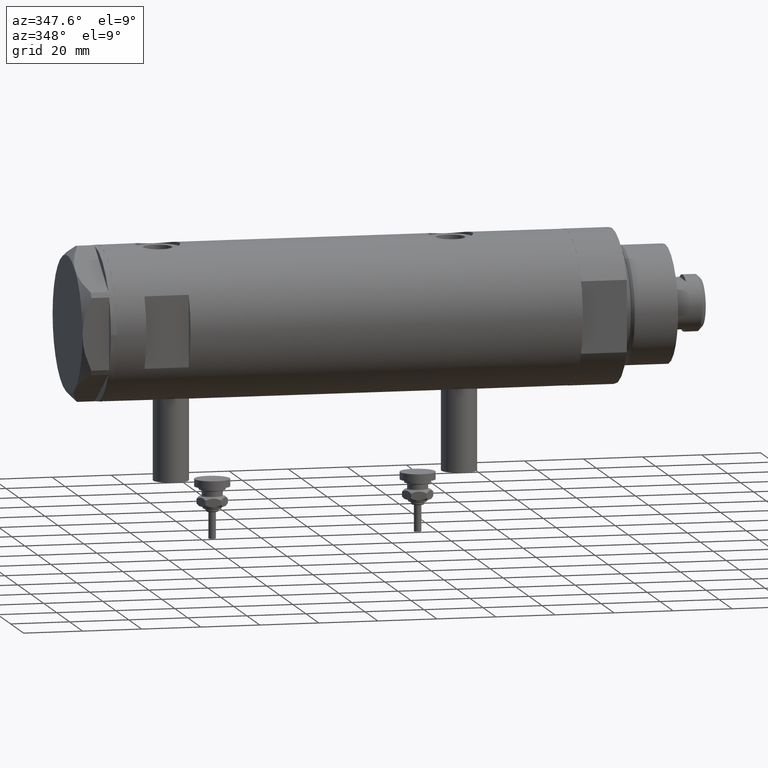
[diagram: clean part render]
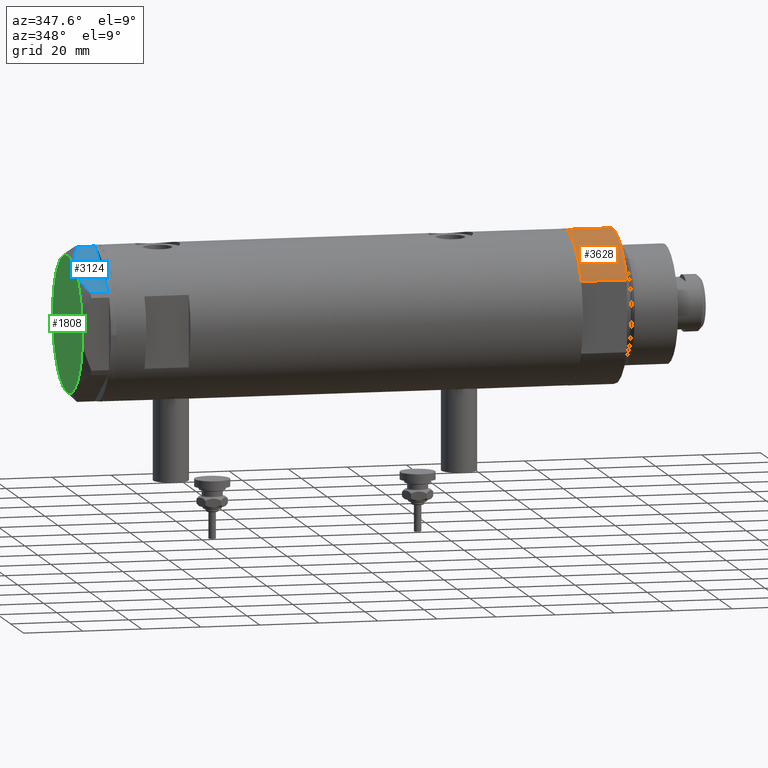
[diagram: same view with three faces highlighted in distinct colors, each labeled with its STEP entity id]
A machine part, auxiliary view with three faces highlighted in distinct colors.
Their STEP definitions:

[orange] entity #3628 — the highlighted cylindrical surface (partial cylindrical patch) has radius 26 mm, axis along (-1, -0, 0).
#18 = CIRCLE ( 'NONE', #2162, 26.00000000000000355 ) ;
#30 = VERTEX_POINT ( 'NONE', #1440 ) ;
#524 = CARTESIAN_POINT ( 'NONE',  ( -12.12435565298215501, -22.99999999999999645, 0.000000000000000000 ) ) ;
#680 = DIRECTION ( 'NONE',  ( 1.000000000000000000, 0.000000000000000000, 0.000000000000000000 ) ) ;
#707 = CARTESIAN_POINT ( 'NONE',  ( -26.00000000000000355, 0.000000000000000000, 15.50000000000000000 ) ) ;
#923 = EDGE_CURVE ( 'NONE', #1279, #1913, #2763, .T. ) ;
#1101 = LINE ( 'NONE', #4861, #1593 ) ;
#1179 = DIRECTION ( 'NONE',  ( 0.000000000000000000, 0.000000000000000000, 1.000000000000000000 ) ) ;
#1217 = DIRECTION ( 'NONE',  ( -0.000000000000000000, -0.000000000000000000, -1.000000000000000000 ) ) ;
#1251 = VERTEX_POINT ( 'NONE', #524 ) ;
#1279 = VERTEX_POINT ( 'NONE', #707 ) ;
#1440 = CARTESIAN_POINT ( 'NONE',  ( -26.00000000000000355, 0.000000000000000000, 0.000000000000000000 ) ) ;
#1593 = VECTOR ( 'NONE', #2483, 1000.000000000000000 ) ;
#1913 = VERTEX_POINT ( 'NONE', #2795 ) ;
#2162 = AXIS2_PLACEMENT_3D ( 'NONE', #6118, #5160, #680 ) ;
#2201 = CARTESIAN_POINT ( 'NONE',  ( 0.000000000000000000, 0.000000000000000000, 15.50000000000000000 ) ) ;
#2241 = EDGE_CURVE ( 'NONE', #1251, #1913, #4673, .T. ) ;
#2483 = DIRECTION ( 'NONE',  ( -0.000000000000000000, -0.000000000000000000, -1.000000000000000000 ) ) ;
#2763 = CIRCLE ( 'NONE', #5412, 26.00000000000000355 ) ;
#2795 = CARTESIAN_POINT ( 'NONE',  ( -12.12435565298215323, -22.99999999999999645, 15.50000000000000000 ) ) ;
#3150 = CARTESIAN_POINT ( 'NONE',  ( -12.12435565298215145, -22.99999999999999645, 0.000000000000000000 ) ) ;
#3628 = ADVANCED_FACE ( 'NONE', ( #3662 ), #5139, .T. ) ;
#3662 = FACE_OUTER_BOUND ( 'NONE', #6282, .T. ) ;
#3734 = CARTESIAN_POINT ( 'NONE',  ( 0.000000000000000000, 0.000000000000000000, 15.50000000000000000 ) ) ;
#3834 = EDGE_CURVE ( 'NONE', #30, #1251, #18, .T. ) ;
#4082 = EDGE_CURVE ( 'NONE', #1279, #30, #1101, .T. ) ;
#4186 = DIRECTION ( 'NONE',  ( -1.000000000000000000, 0.000000000000000000, 0.000000000000000000 ) ) ;
#4425 = ORIENTED_EDGE ( 'NONE', *, *, #3834, .T. ) ;
#4673 = LINE ( 'NONE', #3150, #5007 ) ;
#4683 = ORIENTED_EDGE ( 'NONE', *, *, #923, .F. ) ;
#4711 = AXIS2_PLACEMENT_3D ( 'NONE', #3734, #1217, #4186 ) ;
#4861 = CARTESIAN_POINT ( 'NONE',  ( -26.00000000000000355, 0.000000000000000000, 15.50000000000000000 ) ) ;
#5007 = VECTOR ( 'NONE', #5652, 1000.000000000000000 ) ;
#5075 = ORIENTED_EDGE ( 'NONE', *, *, #4082, .T. ) ;
#5139 = CYLINDRICAL_SURFACE ( 'NONE', #4711, 26.00000000000000355 ) ;
#5160 = DIRECTION ( 'NONE',  ( 0.000000000000000000, 0.000000000000000000, 1.000000000000000000 ) ) ;
#5412 = AXIS2_PLACEMENT_3D ( 'NONE', #2201, #1179, #5646 ) ;
#5646 = DIRECTION ( 'NONE',  ( 1.000000000000000000, 0.000000000000000000, 0.000000000000000000 ) ) ;
#5652 = DIRECTION ( 'NONE',  ( -0.000000000000000000, -0.000000000000000000, 1.000000000000000000 ) ) ;
#6118 = CARTESIAN_POINT ( 'NONE',  ( 0.000000000000000000, 0.000000000000000000, 0.000000000000000000 ) ) ;
#6282 = EDGE_LOOP ( 'NONE', ( #4683, #5075, #4425, #6320 ) ) ;
#6320 = ORIENTED_EDGE ( 'NONE', *, *, #2241, .T. ) ;

[blue] entity #3124 — the highlighted planar face has unit normal (-0, 0.5, -0.866).
#37 = LINE ( 'NONE', #4360, #542 ) ;
#71 = DIRECTION ( 'NONE',  ( -0.8660254037844414832, 0.4999999999999950040, 0.000000000000000000 ) ) ;
#185 = CARTESIAN_POINT ( 'NONE',  ( -16.05322244309625290, -17.28978008384019915, 8.426899937603781865 ) ) ;
#255 = CARTESIAN_POINT ( 'NONE',  ( -13.80210138309694301, -18.58946543380922378, 8.852712638955804181 ) ) ;
#402 = EDGE_CURVE ( 'NONE', #1689, #2720, #4296, .T. ) ;
#542 = VECTOR ( 'NONE', #3534, 1000.000000000000000 ) ;
#601 = LINE ( 'NONE', #4486, #3497 ) ;
#701 = CARTESIAN_POINT ( 'NONE',  ( -1.799196345398571983, -25.51934588838179607, 6.431317509510369845 ) ) ;
#719 = CARTESIAN_POINT ( 'NONE',  ( -22.99999999999990408, -13.27905619136147841, 0.000000000000000000 ) ) ;
#783 = CARTESIAN_POINT ( 'NONE',  ( -0.9699484522383977625, -25.99811238272274494, 9.000000000000000000 ) ) ;
#1173 = CARTESIAN_POINT ( 'NONE',  ( -21.99999999999998224, -13.85640646055105485, 0.000000000000000000 ) ) ;
#1201 = CARTESIAN_POINT ( 'NONE',  ( -7.884645426990268824, -22.00591022298511490, 8.707651728477127762 ) ) ;
#1269 = CARTESIAN_POINT ( 'NONE',  ( -20.37350567916426058, -14.79546339452094017, 6.877782426143456362 ) ) ;
#1272 = CARTESIAN_POINT ( 'NONE',  ( -2.640413878808339110, -25.03366871902064261, 6.844201024439214187 ) ) ;
#1274 = CARTESIAN_POINT ( 'NONE',  ( -22.03005154776132102, -13.83905619136147536, 9.000000000000000000 ) ) ;
#1284 = CARTESIAN_POINT ( 'NONE',  ( -0.9999999999997406519, -25.98076211353317433, 0.000000000000000000 ) ) ;
#1472 = CARTESIAN_POINT ( 'NONE',  ( -22.99999999999990408, -13.27905619136147841, 9.000000000000000000 ) ) ;
#1566 = VERTEX_POINT ( 'NONE', #3465 ) ;
#1580 = ORIENTED_EDGE ( 'NONE', *, *, #6259, .T. ) ;
#1656 = CARTESIAN_POINT ( 'NONE',  ( -5.671686373603866294, -23.28356272816335348, 8.040681765829727823 ) ) ;
#1689 = VERTEX_POINT ( 'NONE', #3784 ) ;
#1857 = VERTEX_POINT ( 'NONE', #1173 ) ;
#1899 = ORIENTED_EDGE ( 'NONE', *, *, #4218, .F. ) ;
#1900 = ORIENTED_EDGE ( 'NONE', *, *, #3839, .T. ) ;
#2220 = CARTESIAN_POINT ( 'NONE',  ( -12.41906678023023325, -19.38796083407287085, 8.981686407609506873 ) ) ;
#2329 = EDGE_CURVE ( 'NONE', #5245, #1857, #3632, .T. ) ;
#2370 = VECTOR ( 'NONE', #4640, 1000.000000000000000 ) ;
#2697 = CARTESIAN_POINT ( 'NONE',  ( -22.03005154776132102, -13.83905619136147536, 0.000000000000000000 ) ) ;
#2720 = VERTEX_POINT ( 'NONE', #3079 ) ;
#2722 = CARTESIAN_POINT ( 'NONE',  ( -15.16323225988328538, -17.80361615569431777, 8.637313967156948991 ) ) ;
#3079 = CARTESIAN_POINT ( 'NONE',  ( -11.49999999999990585, -19.91858428704219364, 9.000000000000000000 ) ) ;
#3101 = CARTESIAN_POINT ( 'NONE',  ( -13.34348161667001698, -18.85424967941148822, 8.907842277728438063 ) ) ;
#3124 = ADVANCED_FACE ( 'NONE', ( #5446 ), #5830, .F. ) ;
#3163 = CARTESIAN_POINT ( 'NONE',  ( -22.03005154776146313, -13.83905619136139364, 5.983800287807550689 ) ) ;
#3199 = CARTESIAN_POINT ( 'NONE',  ( -11.95865151389046588, -19.65378171203314395, 9.000000000000095923 ) ) ;
#3232 = ORIENTED_EDGE ( 'NONE', *, *, #2329, .T. ) ;
#3378 = VECTOR ( 'NONE', #4648, 1000.000000000000000 ) ;
#3395 = DIRECTION ( 'NONE',  ( 0.4999999999999950595, 0.8660254037844415942, -0.000000000000000000 ) ) ;
#3465 = CARTESIAN_POINT ( 'NONE',  ( -0.9699484522383943208, -25.99811238272274494, 0.000000000000000000 ) ) ;
#3476 = B_SPLINE_CURVE_WITH_KNOTS ( 'NONE', 3,
 ( #3615, #5570, #1201, #1656, #5079, #4047, #5632, #1272, #701, #4587 ),
 .UNSPECIFIED., .F., .F.,
 ( 4, 2, 2, 2, 4 ),
 ( 0.01376519981810312397, 0.01998941321701459134, 0.02154546656674245428, 0.02310151991647032069, 0.02621362661592604310 ),
 .UNSPECIFIED. ) ;
#3497 = VECTOR ( 'NONE', #4394, 1000.000000000000000 ) ;
#3534 = DIRECTION ( 'NONE',  ( 0.8660254037844415942, -0.4999999999999950595, 0.000000000000000000 ) ) ;
#3611 = CARTESIAN_POINT ( 'NONE',  ( -11.49999999999990585, -19.91858428704219364, 9.000000000000000000 ) ) ;
#3615 = CARTESIAN_POINT ( 'NONE',  ( -11.49999999999990585, -19.91858428704219364, 9.000000000000000000 ) ) ;
#3618 = LINE ( 'NONE', #1274, #4511 ) ;
#3624 = ORIENTED_EDGE ( 'NONE', *, *, #5591, .T. ) ;
#3632 = LINE ( 'NONE', #719, #3378 ) ;
#3784 = CARTESIAN_POINT ( 'NONE',  ( -22.03005154776146313, -13.83905619136139364, 5.983800287807550689 ) ) ;
#3786 = CARTESIAN_POINT ( 'NONE',  ( -0.9699484522404678843, -25.99811238272155123, 5.983800287808756835 ) ) ;
#3839 = EDGE_CURVE ( 'NONE', #1566, #4543, #5065, .T. ) ;
#3860 = VERTEX_POINT ( 'NONE', #1284 ) ;
#4047 = CARTESIAN_POINT ( 'NONE',  ( -4.357207709417335373, -24.04247733877546267, 7.570552255230290406 ) ) ;
#4144 = ORIENTED_EDGE ( 'NONE', *, *, #5587, .T. ) ;
#4218 = EDGE_CURVE ( 'NONE', #2720, #4543, #3476, .T. ) ;
#4296 = B_SPLINE_CURVE_WITH_KNOTS ( 'NONE', 3,
 ( #3163, #1269, #4549, #185, #2722, #255, #3101, #2220, #3199, #3611 ),
 .UNSPECIFIED., .F., .F.,
 ( 4, 2, 2, 2, 4 ),
 ( 0.001228959670438514989, 0.007497079744270818830, 0.01063113978118697227, 0.01219816979964504812, 0.01376519981810312397 ),
 .UNSPECIFIED. ) ;
#4360 = CARTESIAN_POINT ( 'NONE',  ( -22.99999999999990408, -13.27905619136147841, 0.000000000000000000 ) ) ;
#4394 = DIRECTION ( 'NONE',  ( 0.8660254037844415942, -0.4999999999999950595, 0.000000000000000000 ) ) ;
#4486 = CARTESIAN_POINT ( 'NONE',  ( -22.99999999999990408, -13.27905619136147841, 0.000000000000000000 ) ) ;
#4511 = VECTOR ( 'NONE', #5572, 1000.000000000000000 ) ;
#4543 = VERTEX_POINT ( 'NONE', #3786 ) ;
#4549 = CARTESIAN_POINT ( 'NONE',  ( -18.67981377008999644, -15.77331687414923778, 7.629374868826104716 ) ) ;
#4587 = CARTESIAN_POINT ( 'NONE',  ( -0.9699484522404678843, -25.99811238272155123, 5.983800287808756835 ) ) ;
#4640 = DIRECTION ( 'NONE',  ( 0.000000000000000000, 0.000000000000000000, 1.000000000000000000 ) ) ;
#4648 = DIRECTION ( 'NONE',  ( 0.8660254037844415942, -0.4999999999999950595, 0.000000000000000000 ) ) ;
#4676 = ORIENTED_EDGE ( 'NONE', *, *, #402, .F. ) ;
#4810 = AXIS2_PLACEMENT_3D ( 'NONE', #1472, #3395, #71 ) ;
#5065 = LINE ( 'NONE', #783, #2370 ) ;
#5079 = CARTESIAN_POINT ( 'NONE',  ( -5.229981517799206614, -23.53858114556453529, 7.892128867758890998 ) ) ;
#5245 = VERTEX_POINT ( 'NONE', #2697 ) ;
#5422 = EDGE_LOOP ( 'NONE', ( #4676, #1580, #3232, #3624, #4144, #1900, #1899 ) ) ;
#5446 = FACE_OUTER_BOUND ( 'NONE', #5422, .T. ) ;
#5570 = CARTESIAN_POINT ( 'NONE',  ( -9.678244919010385416, -20.97037507344893115, 9.000000000000088818 ) ) ;
#5572 = DIRECTION ( 'NONE',  ( -0.000000000000000000, 0.000000000000000000, -1.000000000000000000 ) ) ;
#5587 = EDGE_CURVE ( 'NONE', #3860, #1566, #37, .T. ) ;
#5591 = EDGE_CURVE ( 'NONE', #1857, #3860, #601, .T. ) ;
#5632 = CARTESIAN_POINT ( 'NONE',  ( -3.925137811031424562, -24.29193301091729396, 7.397272853992039821 ) ) ;
#5830 = PLANE ( 'NONE',  #4810 ) ;
#6259 = EDGE_CURVE ( 'NONE', #1689, #5245, #3618, .T. ) ;

[green] entity #1808 — the highlighted planar face has unit normal (-1, -0, 0).
#143 = FACE_OUTER_BOUND ( 'NONE', #3495, .T. ) ;
#210 = ORIENTED_EDGE ( 'NONE', *, *, #2090, .T. ) ;
#301 = AXIS2_PLACEMENT_3D ( 'NONE', #4426, #4455, #4876 ) ;
#448 = ORIENTED_EDGE ( 'NONE', *, *, #3789, .T. ) ;
#461 = VERTEX_POINT ( 'NONE', #6209 ) ;
#494 = DIRECTION ( 'NONE',  ( 0.000000000000000000, 0.000000000000000000, 1.000000000000000000 ) ) ;
#617 = EDGE_CURVE ( 'NONE', #461, #2204, #1863, .T. ) ;
#696 = ORIENTED_EDGE ( 'NONE', *, *, #2673, .T. ) ;
#729 = DIRECTION ( 'NONE',  ( 1.000000000000000000, 0.000000000000000000, 0.000000000000000000 ) ) ;
#1010 = DIRECTION ( 'NONE',  ( 0.000000000000000000, 0.000000000000000000, 1.000000000000000000 ) ) ;
#1014 = DIRECTION ( 'NONE',  ( 1.000000000000000000, 0.000000000000000000, 0.000000000000000000 ) ) ;
#1096 = CARTESIAN_POINT ( 'NONE',  ( 0.000000000000000000, 0.000000000000000000, 9.000000000000000000 ) ) ;
#1256 = VERTEX_POINT ( 'NONE', #2990 ) ;
#1297 = CARTESIAN_POINT ( 'NONE',  ( -23.00000000000004619, -8.112498833180673323E-14, 9.000000000000000000 ) ) ;
#1564 = DIRECTION ( 'NONE',  ( 0.000000000000000000, 0.000000000000000000, 1.000000000000000000 ) ) ;
#1707 = EDGE_CURVE ( 'NONE', #5743, #2720, #2660, .T. ) ;
#1808 = ADVANCED_FACE ( 'NONE', ( #143 ), #4934, .T. ) ;
#1863 = CIRCLE ( 'NONE', #301, 23.00000000000004619 ) ;
#1881 = AXIS2_PLACEMENT_3D ( 'NONE', #3435, #494, #1014 ) ;
#2090 = EDGE_CURVE ( 'NONE', #1256, #5743, #5103, .T. ) ;
#2204 = VERTEX_POINT ( 'NONE', #3557 ) ;
#2217 = CARTESIAN_POINT ( 'NONE',  ( 0.000000000000000000, 0.000000000000000000, 9.000000000000000000 ) ) ;
#2660 = CIRCLE ( 'NONE', #4268, 23.00000000000004619 ) ;
#2673 = EDGE_CURVE ( 'NONE', #2866, #1256, #5329, .T. ) ;
#2720 = VERTEX_POINT ( 'NONE', #3079 ) ;
#2866 = VERTEX_POINT ( 'NONE', #6216 ) ;
#2990 = CARTESIAN_POINT ( 'NONE',  ( -11.50000000000004441, 19.91858428704211548, 9.000000000000000000 ) ) ;
#3079 = CARTESIAN_POINT ( 'NONE',  ( -11.49999999999990585, -19.91858428704219364, 9.000000000000000000 ) ) ;
#3403 = DIRECTION ( 'NONE',  ( 1.000000000000000000, 0.000000000000000000, 0.000000000000000000 ) ) ;
#3435 = CARTESIAN_POINT ( 'NONE',  ( 0.000000000000000000, 0.000000000000000000, 9.000000000000000000 ) ) ;
#3495 = EDGE_LOOP ( 'NONE', ( #4373, #4043, #696, #210, #4429, #448 ) ) ;
#3512 = DIRECTION ( 'NONE',  ( 1.000000000000000000, 0.000000000000000000, 0.000000000000000000 ) ) ;
#3557 = CARTESIAN_POINT ( 'NONE',  ( 22.99999999999995026, 2.373657066004705010E-13, 9.000000000000000000 ) ) ;
#3789 = EDGE_CURVE ( 'NONE', #2720, #461, #5951, .T. ) ;
#3998 = AXIS2_PLACEMENT_3D ( 'NONE', #5974, #4030, #5996 ) ;
#4030 = DIRECTION ( 'NONE',  ( 0.000000000000000000, 0.000000000000000000, 1.000000000000000000 ) ) ;
#4043 = ORIENTED_EDGE ( 'NONE', *, *, #4715, .T. ) ;
#4268 = AXIS2_PLACEMENT_3D ( 'NONE', #4702, #5773, #3403 ) ;
#4285 = AXIS2_PLACEMENT_3D ( 'NONE', #2217, #5594, #729 ) ;
#4373 = ORIENTED_EDGE ( 'NONE', *, *, #617, .T. ) ;
#4426 = CARTESIAN_POINT ( 'NONE',  ( 0.000000000000000000, 0.000000000000000000, 9.000000000000000000 ) ) ;
#4429 = ORIENTED_EDGE ( 'NONE', *, *, #1707, .T. ) ;
#4455 = DIRECTION ( 'NONE',  ( 0.000000000000000000, 0.000000000000000000, 1.000000000000000000 ) ) ;
#4689 = AXIS2_PLACEMENT_3D ( 'NONE', #5355, #1010, #5969 ) ;
#4702 = CARTESIAN_POINT ( 'NONE',  ( 0.000000000000000000, 0.000000000000000000, 9.000000000000000000 ) ) ;
#4715 = EDGE_CURVE ( 'NONE', #2204, #2866, #6038, .T. ) ;
#4876 = DIRECTION ( 'NONE',  ( 1.000000000000000000, 0.000000000000000000, 0.000000000000000000 ) ) ;
#4934 = PLANE ( 'NONE',  #4689 ) ;
#5103 = CIRCLE ( 'NONE', #5836, 23.00000000000004619 ) ;
#5329 = CIRCLE ( 'NONE', #1881, 23.00000000000004619 ) ;
#5355 = CARTESIAN_POINT ( 'NONE',  ( 0.000000000000000000, 0.000000000000000000, 9.000000000000000000 ) ) ;
#5594 = DIRECTION ( 'NONE',  ( 0.000000000000000000, 0.000000000000000000, 1.000000000000000000 ) ) ;
#5743 = VERTEX_POINT ( 'NONE', #1297 ) ;
#5773 = DIRECTION ( 'NONE',  ( 0.000000000000000000, 0.000000000000000000, 1.000000000000000000 ) ) ;
#5836 = AXIS2_PLACEMENT_3D ( 'NONE', #1096, #1564, #3512 ) ;
#5951 = CIRCLE ( 'NONE', #3998, 23.00000000000004619 ) ;
#5969 = DIRECTION ( 'NONE',  ( 1.000000000000000000, 0.000000000000000000, -0.000000000000000000 ) ) ;
#5974 = CARTESIAN_POINT ( 'NONE',  ( 0.000000000000000000, 0.000000000000000000, 9.000000000000000000 ) ) ;
#5996 = DIRECTION ( 'NONE',  ( 1.000000000000000000, 0.000000000000000000, 0.000000000000000000 ) ) ;
#6038 = CIRCLE ( 'NONE', #4285, 23.00000000000004619 ) ;
#6209 = CARTESIAN_POINT ( 'NONE',  ( 11.50000000000018296, -19.91858428704203732, 9.000000000000000000 ) ) ;
#6216 = CARTESIAN_POINT ( 'NONE',  ( 11.49999999999990408, 19.91858428704219364, 9.000000000000000000 ) ) ;